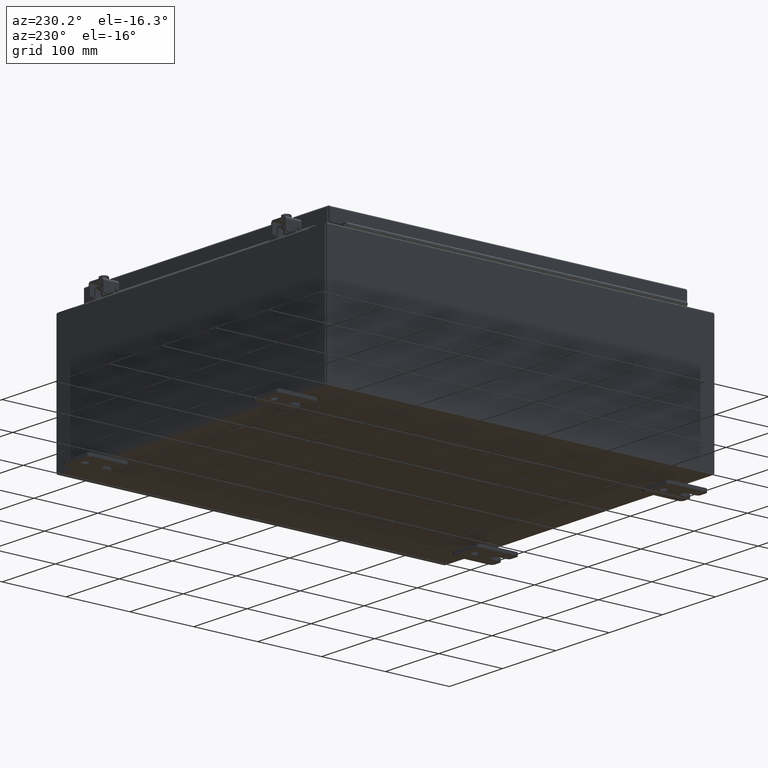
[diagram: clean part render]
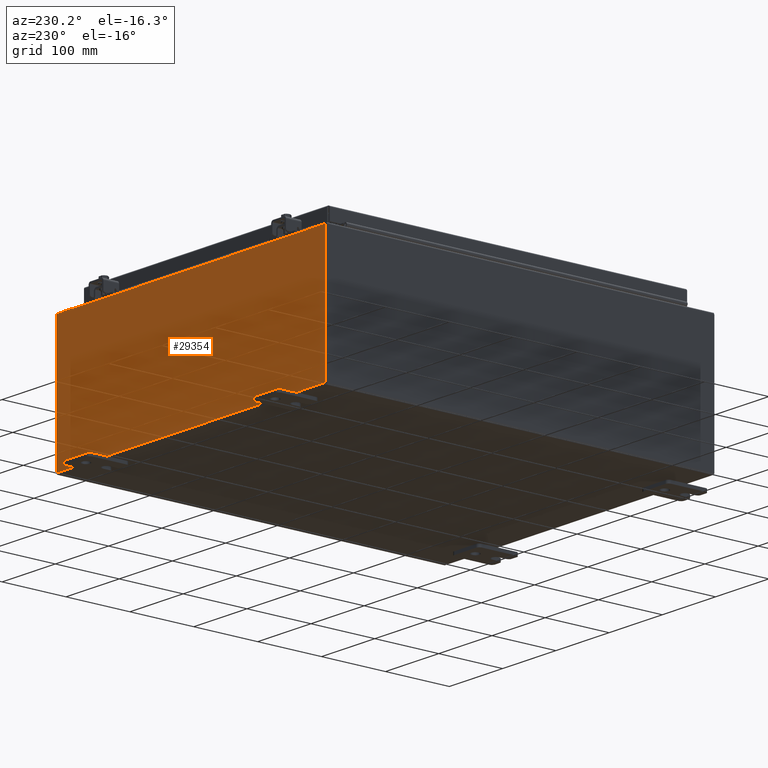
[diagram: same view with one face highlighted and labeled with its STEP entity id]
A machine part, auxiliary view. The second image highlights one B-rep face of the part: STEP entity #29354.
In plain terms, the highlighted planar face has unit normal (0, -1, 0).
Its self-contained STEP definition (entity closure, byte-faithful):
#607 = ORIENTED_EDGE ( 'NONE', *, *, #15341, .F. ) ;
#863 = CARTESIAN_POINT ( 'NONE',  ( 9.925300000000000000, 0.0000000000000000000, 3.925300000000000500 ) ) ;
#1200 = CARTESIAN_POINT ( 'NONE',  ( 9.925300000000000000, 0.0000000000000000000, -3.925299999999999600 ) ) ;
#1811 = CARTESIAN_POINT ( 'NONE',  ( 8.637200000000000000, 0.0000000000000000000, 3.874949999999999200 ) ) ;
#1948 = LINE ( 'NONE', #6981, #28203 ) ;
#2496 = LINE ( 'NONE', #5302, #27146 ) ;
#2499 = EDGE_CURVE ( 'NONE', #26505, #29922, #7060, .T. ) ;
#3126 = DIRECTION ( 'NONE',  ( -0.0000000000000000000, 1.000000000000000000, -0.0000000000000000000 ) ) ;
#3627 = ORIENTED_EDGE ( 'NONE', *, *, #29274, .F. ) ;
#4009 = VECTOR ( 'NONE', #5184, 39.37007874015748100 ) ;
#4455 = VECTOR ( 'NONE', #26187, 39.37007874015748100 ) ;
#5184 = DIRECTION ( 'NONE',  ( -0.0000000000000000000, -0.0000000000000000000, 1.000000000000000000 ) ) ;
#5302 = CARTESIAN_POINT ( 'NONE',  ( -9.925300000000000000, 0.0000000000000000000, 3.925300000000000500 ) ) ;
#5669 = CARTESIAN_POINT ( 'NONE',  ( 8.655875000000000000, 0.0000000000000000000, 3.874949999999999200 ) ) ;
#5802 = EDGE_CURVE ( 'NONE', #16024, #16133, #27984, .T. ) ;
#6733 = VERTEX_POINT ( 'NONE', #8996 ) ;
#6870 = VECTOR ( 'NONE', #17606, 39.37007874015748100 ) ;
#6890 = LINE ( 'NONE', #23226, #12854 ) ;
#6981 = CARTESIAN_POINT ( 'NONE',  ( 8.674549999999747700, 0.0000000000000000000, -5.649461650897696500E-013 ) ) ;
#7060 = LINE ( 'NONE', #26128, #19764 ) ;
#8211 = DIRECTION ( 'NONE',  ( 0.0000000000000000000, 0.0000000000000000000, -1.000000000000000000 ) ) ;
#8471 = EDGE_CURVE ( 'NONE', #26505, #30822, #1948, .T. ) ;
#8996 = CARTESIAN_POINT ( 'NONE',  ( -8.637199999999996400, 0.0000000000000000000, 3.874949999999999200 ) ) ;
#9543 = DIRECTION ( 'NONE',  ( -6.510859170600007400E-014, 0.0000000000000000000, -1.000000000000000000 ) ) ;
#9921 = DIRECTION ( 'NONE',  ( 0.0000000000000000000, 0.0000000000000000000, 1.000000000000000000 ) ) ;
#10050 = EDGE_CURVE ( 'NONE', #21618, #16619, #28942, .T. ) ;
#10522 = CARTESIAN_POINT ( 'NONE',  ( -8.674549999999996400, 0.0000000000000000000, 3.874949999999999200 ) ) ;
#10542 = EDGE_LOOP ( 'NONE', ( #17147, #11760, #607, #30909, #3627, #32007, #22346, #28893, #32573, #21331, #21532, #27587 ) ) ;
#10786 = CARTESIAN_POINT ( 'NONE',  ( 0.0000000000000000000, 0.0000000000000000000, 0.0000000000000000000 ) ) ;
#11305 = CARTESIAN_POINT ( 'NONE',  ( -8.637199999999996400, 0.0000000000000000000, 3.912300000000000100 ) ) ;
#11760 = ORIENTED_EDGE ( 'NONE', *, *, #26591, .F. ) ;
#12360 = CARTESIAN_POINT ( 'NONE',  ( -8.674549999999996400, 0.0000000000000000000, 0.0000000000000000000 ) ) ;
#12854 = VECTOR ( 'NONE', #25789, 39.37007874015748100 ) ;
#13330 = DIRECTION ( 'NONE',  ( 0.0000000000000000000, -1.000000000000000000, 0.0000000000000000000 ) ) ;
#14286 = CARTESIAN_POINT ( 'NONE',  ( 8.637200000000000000, 0.0000000000000000000, 3.912300000000000100 ) ) ;
#14943 = CARTESIAN_POINT ( 'NONE',  ( -8.637200000000000000, 0.0000000000000000000, 3.912300000000000100 ) ) ;
#15341 = EDGE_CURVE ( 'NONE', #16024, #6733, #23422, .T. ) ;
#15444 = CARTESIAN_POINT ( 'NONE',  ( 8.674550000000001800, 0.0000000000000000000, 3.925300000000000500 ) ) ;
#16024 = VERTEX_POINT ( 'NONE', #11305 ) ;
#16133 = VERTEX_POINT ( 'NONE', #14286 ) ;
#16619 = VERTEX_POINT ( 'NONE', #23706 ) ;
#16667 = VECTOR ( 'NONE', #23357, 39.37007874015748100 ) ;
#17147 = ORIENTED_EDGE ( 'NONE', *, *, #10050, .F. ) ;
#17189 = CARTESIAN_POINT ( 'NONE',  ( 9.925300000000000000, 0.0000000000000000000, 3.925300000000000500 ) ) ;
#17606 = DIRECTION ( 'NONE',  ( 1.000000000000000000, 0.0000000000000000000, 0.0000000000000000000 ) ) ;
#18342 = CARTESIAN_POINT ( 'NONE',  ( -8.655874999999996400, 0.0000000000000000000, 3.874949999999999200 ) ) ;
#18819 = VERTEX_POINT ( 'NONE', #24846 ) ;
#18820 = FACE_OUTER_BOUND ( 'NONE', #10542, .T. ) ;
#18864 = LINE ( 'NONE', #19673, #24829 ) ;
#19379 = CIRCLE ( 'NONE', #27163, 0.01867500000000003900 ) ;
#19425 = EDGE_CURVE ( 'NONE', #28303, #18819, #18864, .T. ) ;
#19673 = CARTESIAN_POINT ( 'NONE',  ( -9.925300000000000000, 0.0000000000000000000, -3.925299999999999600 ) ) ;
#19701 = EDGE_CURVE ( 'NONE', #30822, #29106, #30395, .T. ) ;
#19764 = VECTOR ( 'NONE', #28697, 39.37007874015748100 ) ;
#19772 = CARTESIAN_POINT ( 'NONE',  ( -9.925300000000000000, 0.0000000000000000000, 3.925300000000000500 ) ) ;
#20891 = DIRECTION ( 'NONE',  ( 0.0000000000000000000, 0.0000000000000000000, -1.000000000000000000 ) ) ;
#21331 = ORIENTED_EDGE ( 'NONE', *, *, #19425, .T. ) ;
#21532 = ORIENTED_EDGE ( 'NONE', *, *, #31852, .T. ) ;
#21575 = EDGE_CURVE ( 'NONE', #31068, #16619, #2496, .T. ) ;
#21618 = VERTEX_POINT ( 'NONE', #10522 ) ;
#22346 = ORIENTED_EDGE ( 'NONE', *, *, #8471, .F. ) ;
#23150 = AXIS2_PLACEMENT_3D ( 'NONE', #5669, #23430, #8211 ) ;
#23226 = CARTESIAN_POINT ( 'NONE',  ( 8.637200000000000000, 0.0000000000000000000, 0.0000000000000000000 ) ) ;
#23357 = DIRECTION ( 'NONE',  ( 0.0000000000000000000, 0.0000000000000000000, -1.000000000000000000 ) ) ;
#23422 = LINE ( 'NONE', #25821, #16667 ) ;
#23430 = DIRECTION ( 'NONE',  ( -0.0000000000000000000, 1.000000000000000000, -0.0000000000000000000 ) ) ;
#23435 = PLANE ( 'NONE',  #27720 ) ;
#23706 = CARTESIAN_POINT ( 'NONE',  ( -8.674549999999996400, 0.0000000000000000000, 3.925300000000000500 ) ) ;
#24829 = VECTOR ( 'NONE', #32375, 39.37007874015748100 ) ;
#24846 = CARTESIAN_POINT ( 'NONE',  ( -9.925300000000000000, 0.0000000000000000000, -3.925299999999999600 ) ) ;
#25636 = DIRECTION ( 'NONE',  ( 1.000000000000000000, 0.0000000000000000000, 0.0000000000000000000 ) ) ;
#25789 = DIRECTION ( 'NONE',  ( 0.0000000000000000000, 0.0000000000000000000, 1.000000000000000000 ) ) ;
#25821 = CARTESIAN_POINT ( 'NONE',  ( -8.637199999999996400, 0.0000000000000000000, 0.0000000000000000000 ) ) ;
#26128 = CARTESIAN_POINT ( 'NONE',  ( -9.925300000000000000, 0.0000000000000000000, 3.925300000000000500 ) ) ;
#26187 = DIRECTION ( 'NONE',  ( 0.0000000000000000000, 0.0000000000000000000, -1.000000000000000000 ) ) ;
#26505 = VERTEX_POINT ( 'NONE', #15444 ) ;
#26591 = EDGE_CURVE ( 'NONE', #6733, #21618, #19379, .T. ) ;
#27146 = VECTOR ( 'NONE', #25636, 39.37007874015748100 ) ;
#27163 = AXIS2_PLACEMENT_3D ( 'NONE', #18342, #3126, #20891 ) ;
#27587 = ORIENTED_EDGE ( 'NONE', *, *, #21575, .T. ) ;
#27720 = AXIS2_PLACEMENT_3D ( 'NONE', #10786, #13330, #31148 ) ;
#27984 = LINE ( 'NONE', #14943, #6870 ) ;
#27998 = CARTESIAN_POINT ( 'NONE',  ( -9.925300000000000000, 0.0000000000000000000, 3.925300000000000500 ) ) ;
#28203 = VECTOR ( 'NONE', #9543, 39.37007874015748100 ) ;
#28303 = VERTEX_POINT ( 'NONE', #1200 ) ;
#28697 = DIRECTION ( 'NONE',  ( 1.000000000000000000, 0.0000000000000000000, 0.0000000000000000000 ) ) ;
#28893 = ORIENTED_EDGE ( 'NONE', *, *, #2499, .T. ) ;
#28942 = LINE ( 'NONE', #12360, #29729 ) ;
#29106 = VERTEX_POINT ( 'NONE', #1811 ) ;
#29274 = EDGE_CURVE ( 'NONE', #29106, #16133, #6890, .T. ) ;
#29354 = ADVANCED_FACE ( 'NONE', ( #18820 ), #23435, .F. ) ;
#29729 = VECTOR ( 'NONE', #9921, 39.37007874015748100 ) ;
#29922 = VERTEX_POINT ( 'NONE', #17189 ) ;
#30248 = EDGE_CURVE ( 'NONE', #29922, #28303, #32297, .T. ) ;
#30264 = LINE ( 'NONE', #27998, #4009 ) ;
#30395 = CIRCLE ( 'NONE', #23150, 0.01867500000000003900 ) ;
#30822 = VERTEX_POINT ( 'NONE', #31604 ) ;
#30909 = ORIENTED_EDGE ( 'NONE', *, *, #5802, .T. ) ;
#31068 = VERTEX_POINT ( 'NONE', #19772 ) ;
#31148 = DIRECTION ( 'NONE',  ( 0.0000000000000000000, -0.0000000000000000000, -1.000000000000000000 ) ) ;
#31604 = CARTESIAN_POINT ( 'NONE',  ( 8.674550000000000000, 0.0000000000000000000, 3.874949999999999200 ) ) ;
#31852 = EDGE_CURVE ( 'NONE', #18819, #31068, #30264, .T. ) ;
#32007 = ORIENTED_EDGE ( 'NONE', *, *, #19701, .F. ) ;
#32297 = LINE ( 'NONE', #863, #4455 ) ;
#32375 = DIRECTION ( 'NONE',  ( -1.000000000000000000, -0.0000000000000000000, -0.0000000000000000000 ) ) ;
#32573 = ORIENTED_EDGE ( 'NONE', *, *, #30248, .T. ) ;